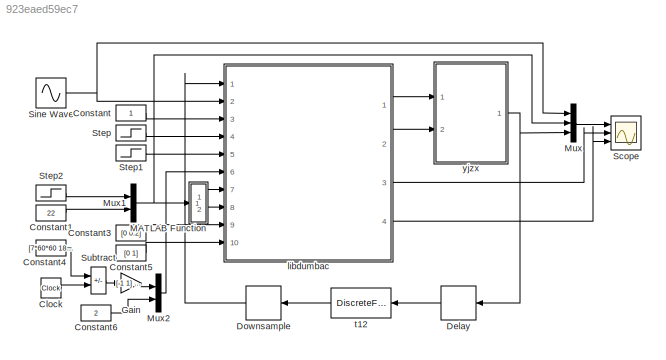
MODEL slx_923eaed59ec7
KIND model
CONFIG AbsTol = auto
CONFIG EnableMultiTasking = off
CONFIG FixedStep = auto
CONFIG MaxStep = auto
CONFIG MinStep = auto
CONFIG RelTol = 1e-3
CONFIG SampleTimeConstraint = Unconstrained
CONFIG Solver = VariableStepAuto
CONFIG SolverName = VariableStepAuto
CONFIG StartTime = 0.0
CONFIG StopTime = 86400
BLOCK [Clock] Clock
  Decimation = 60*60
BLOCK [Constant] Constant
BLOCK [Constant] Constant1
  Value = 22
BLOCK [Constant] Constant3
  Value = [0 0.2]
BLOCK [Constant] Constant4
  Value = [7*60*60 18.5*60*60]
BLOCK [Constant] Constant5
  Value = [0 1]
BLOCK [Constant] Constant6
  Value = 2
BLOCK [Delay] Delay
  DelayLength = 1
  InitialCondition = 0
  InputPortMap = u0
  NameLocation = top
  Ports = [1, 1]
  SampleTime = 1/5
BLOCK [DownSample] Downsample
  InputProcessing = Elements as channels (sample based)
  N = 50
  NameLocation = top
BLOCK [Gain] Gain
  Gain = [-1 1] / (60*60)
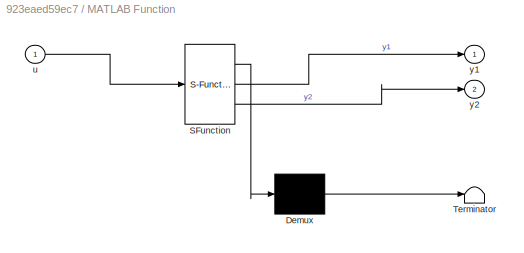
BLOCK [SubSystem] MATLAB Function
  ErrorFcn = Stateflow.Translate.translate
  PermitHierarchicalResolution = ExplicitOnly
  Ports = [1, 2]
  RequestExecContextInheritance = off
  SFBlockType = MATLAB Function
  TreatAsAtomicUnit = on
BLOCK [Demux] MATLAB Function/ Demux 
  Outputs = 1
  Ports = [1, 1]
BLOCK [S-Function] MATLAB Function/ SFunction 
  EnableBusSupport = on
  FunctionName = sf_sfun
  PortCounts = [1 3]
  Ports = [1, 3]
  SFcnIsStateOwnerBlock = off
  SFunctionDeploymentMode = off
  Tag = Stateflow S-Function 2
BLOCK [Terminator] MATLAB Function/ Terminator 
BLOCK [Inport] MATLAB Function/u
BLOCK [Outport] MATLAB Function/y1
BLOCK [Outport] MATLAB Function/y2
  Port = 2
BLOCK [Mux] Mux
  DisplayOption = bar
  Inputs = 3
  Ports = [3, 1]
BLOCK [Mux] Mux1
  DisplayOption = bar
  Inputs = 2
  Ports = [2, 1]
BLOCK [Mux] Mux2
  DisplayOption = bar
  Inputs = 2
  Ports = [2, 1]
BLOCK [Scope] Scope
  Floating = off
  NumInputPorts = 3
  Ports = [3]
  ScopeSpecificationString = Simulink.scopes.TimeScopeBlockCfg('CurrentConfiguration', extmgr.ConfigurationSet(extmgr.Configuration('Core','General UI',true),extmgr.Configuration('Core','Source UI',true),extmgr.Configuration('Sources','WiredSimulink',true),extmgr.Configuration('Visuals','Time Domain',true,'SerializedDisplays',{struct('MinYLimReal','-3.5444','MaxYLimReal','31.89962','YLabelReal','','MinYLimMag','0.00000','MaxY...<+3452ch>
BLOCK [Sin] Sine Wave
  Amplitude = 20
  Bias = 15
  Frequency = 2*pi/24/60/60
  Phase = -110/180*pi
  Ports = [0, 1]
  SampleTime = 0
BLOCK [Step] Step
  After = 3
  Before = 3
  SampleTime = 0
  Time = 3e4
BLOCK [Step] Step1
  After = 0
  SampleTime = 0
  Time = 3e4
BLOCK [Step] Step2
  After = 28
  Before = 20
  SampleTime = 0
  Time = 1e4
BLOCK [Sum] Subtract
  IconShape = rectangular
  Inputs = +-
  Ports = [2, 1]
BLOCK [ModelReference] libdumbac
  ModelNameDialog = libdumbac
  ModelReferenceVersion = 1.205
  Ports = [10, 4]
BLOCK [DiscreteFir] t12
  Coefficients = t12filt
  InputPortMap = u0
  NameLocation = top
  OutputPortMap = o0
  Ports = [1, 1]
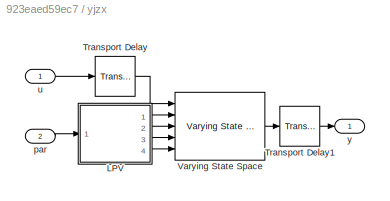
BLOCK [SubSystem] yjzx
  Ports = [2, 1]
  RequestExecContextInheritance = off
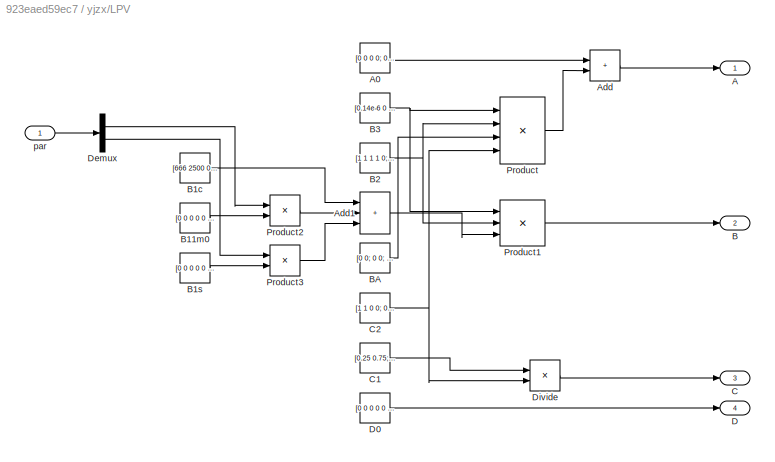
BLOCK [SubSystem] yjzx/LPV
  Ports = [1, 4]
  RequestExecContextInheritance = off
BLOCK [Outport] yjzx/LPV/A
BLOCK [Constant] yjzx/LPV/A0
  Value = [0 0 0 0; 0 -4e3 0 0; 0 0 -0.4e-3 0; 0 0 0 -7e-3]
BLOCK [Sum] yjzx/LPV/Add
  IconShape = rectangular
  Ports = [2, 1]
BLOCK [Sum] yjzx/LPV/Add1
  IconShape = rectangular
  Inputs = +++
  Ports = [3, 1]
BLOCK [Outport] yjzx/LPV/B
  Port = 2
BLOCK [Constant] yjzx/LPV/B11m0
  Value = [0 0 0 0 0 0 0 0 0; 0 0 0 0 0 0 0 0 0; 0 0 0 -350 0 0 0 0 0; 0 0 0 0 0 0 0 0 0; 0 0 0 -140 0 0 0 0 0]
BLOCK [Constant] yjzx/LPV/B1c
  Value = [666 2500 0 0 0 0 0 200 0; 0 0 2500 0 0 0 1100 0 300; 0 0 0 0 -50 0 0 0 0; 0 0 0 0 0 155 0 0 0; 500 0 0 0 0 0 0 0 0]
BLOCK [Constant] yjzx/LPV/B1s
  Value = [0 0 0 0 0 0 0 0 0; 0 0 0 0 0 0 0 0 0; 0 0 0 0 1 0 0 0 0; 0 0 0 0 0 0 0 0 0; 0 0 0 0 0 0 0 0 0]
BLOCK [Constant] yjzx/LPV/B2
  Value = [1 1 1 1 0; -1 1 -1 0 0; 0 0 0 0 1]
BLOCK [Constant] yjzx/LPV/B3
  Value = [0.14e-6 0 0; 0 0 2e-6; 0 0.38e-6 0; 0 0 -10e-6]
BLOCK [Constant] yjzx/LPV/BA
  Value = [0 0; 0 0; 0 0; -155 0; 0 0]
BLOCK [Outport] yjzx/LPV/C
  Port = 3
BLOCK [Constant] yjzx/LPV/C1
  Value = [0.25 0.75; -1 1]
BLOCK [Constant] yjzx/LPV/C2
  Value = [1 1 0 0; 0 0 1 1]
BLOCK [Outport] yjzx/LPV/D
  Port = 4
BLOCK [Constant] yjzx/LPV/D0
  Value = [0 0 0 0 0 0 0 0 0; 0 0 0 0 0 0 0 0 0]
BLOCK [Demux] yjzx/LPV/Demux
  Outputs = 2
  Ports = [1, 2]
BLOCK [Product] yjzx/LPV/Divide
  Inputs = /*
  Multiplication = Matrix(*)
  Ports = [2, 1]
BLOCK [Product] yjzx/LPV/Product
  Inputs = 4
  Multiplication = Matrix(*)
  Ports = [4, 1]
BLOCK [Product] yjzx/LPV/Product1
  Inputs = 3
  Multiplication = Matrix(*)
  Ports = [3, 1]
BLOCK [Product] yjzx/LPV/Product2
  Ports = [2, 1]
BLOCK [Product] yjzx/LPV/Product3
  Ports = [2, 1]
BLOCK [Inport] yjzx/LPV/par
BLOCK [TransportDelay] yjzx/Transport Delay
  DelayTime = [30 60 60 0 180 0 0 0 0]
  Ports = [1, 1]
BLOCK [TransportDelay] yjzx/Transport Delay1
  DelayTime = [120 120]
  Ports = [1, 1]
BLOCK [Reference] yjzx/Varying State Space  REF=cstblocks/Linear Parameter Varying/Varying State Space
  Ports = [5, 1]
  SourceBlock = cstblocks/Linear Parameter Varying/Varying State Space
  SourceProductBaseCode = CT
  SourceType = Varying State Space
BLOCK [Inport] yjzx/par
  Port = 2
BLOCK [Inport] yjzx/u
BLOCK [Outport] yjzx/y
LINE Clock:1 -> Subtract:2
LINE Constant1:1 -> Mux1:2
LINE Constant3:1 -> libdumbac:9
LINE Constant4:1 -> Subtract:1
LINE Constant5:1 -> libdumbac:10
LINE Constant6:1 -> Mux2:2
LINE Constant:1 -> libdumbac:3
LINE Delay:1 -> t12:1
LINE Downsample:1 -> libdumbac:1
LINE Gain:1 -> Mux2:1
LINE MATLAB Function:1 -> libdumbac:7
LINE MATLAB Function:2 -> libdumbac:8
NET Mux1:1 -> MATLAB Function:1, Mux:2
LINE Mux2:1 -> libdumbac:6
LINE Mux:1 -> Scope:1
NET Sine Wave:1 -> Mux:1, libdumbac:2
LINE Step1:1 -> libdumbac:5
LINE Step2:1 -> Mux1:1
LINE Step:1 -> libdumbac:4
LINE Subtract:1 -> Gain:1
LINE libdumbac:1 -> yjzx:1
LINE libdumbac:2 -> yjzx:2
LINE libdumbac:3 -> Scope:2
LINE libdumbac:4 -> Scope:3
LINE t12:1 -> Downsample:1
LINE yjzx/LPV/A0:1 -> yjzx/LPV/Add:1
LINE yjzx/LPV/Add1:1 -> yjzx/LPV/Product1:3
LINE yjzx/LPV/Add:1 -> yjzx/LPV/A:1
LINE yjzx/LPV/B11m0:1 -> yjzx/LPV/Product2:2
LINE yjzx/LPV/B1c:1 -> yjzx/LPV/Add1:1
LINE yjzx/LPV/B1s:1 -> yjzx/LPV/Product3:2
NET yjzx/LPV/B2:1 -> yjzx/LPV/Product1:2, yjzx/LPV/Product:2
NET yjzx/LPV/B3:1 -> yjzx/LPV/Product1:1, yjzx/LPV/Product:1
LINE yjzx/LPV/BA:1 -> yjzx/LPV/Product:3
LINE yjzx/LPV/C1:1 -> yjzx/LPV/Divide:1
NET yjzx/LPV/C2:1 -> yjzx/LPV/Divide:2, yjzx/LPV/Product:4
LINE yjzx/LPV/D0:1 -> yjzx/LPV/D:1
LINE yjzx/LPV/Demux:1 -> yjzx/LPV/Product2:1
LINE yjzx/LPV/Demux:2 -> yjzx/LPV/Product3:1
LINE yjzx/LPV/Divide:1 -> yjzx/LPV/C:1
LINE yjzx/LPV/Product1:1 -> yjzx/LPV/B:1
LINE yjzx/LPV/Product2:1 -> yjzx/LPV/Add1:2
LINE yjzx/LPV/Product3:1 -> yjzx/LPV/Add1:3
LINE yjzx/LPV/Product:1 -> yjzx/LPV/Add:2
LINE yjzx/LPV/par:1 -> yjzx/LPV/Demux:1
LINE yjzx/LPV:1 -> yjzx/Varying State Space:2
LINE yjzx/LPV:2 -> yjzx/Varying State Space:3
LINE yjzx/LPV:3 -> yjzx/Varying State Space:4
LINE yjzx/LPV:4 -> yjzx/Varying State Space:5
LINE yjzx/Transport Delay1:1 -> yjzx/y:1
LINE yjzx/Transport Delay:1 -> yjzx/Varying State Space:1
LINE yjzx/Varying State Space:1 -> yjzx/Transport Delay1:1
LINE yjzx/par:1 -> yjzx/LPV:1
LINE yjzx/u:1 -> yjzx/Transport Delay:1
NET yjzx:1 -> Delay:1, Mux:3
note: NET lines group one-source signal fan-out (src -> all destinations, sorted); 1:1 wires keep LINE
CHART MATLAB Function states=1 transitions=1
  STATE_LABEL 'eML_blk_kernel()'
  STATE_LABEL 'SCRIPT:\nfunction [y1, y2] = fcn(u)\n\ny1 = repmat(u(1), 25, 1);\ny2 = repmat(u(2), 25, 1);\n'
CHART  states=0 transitions=0
